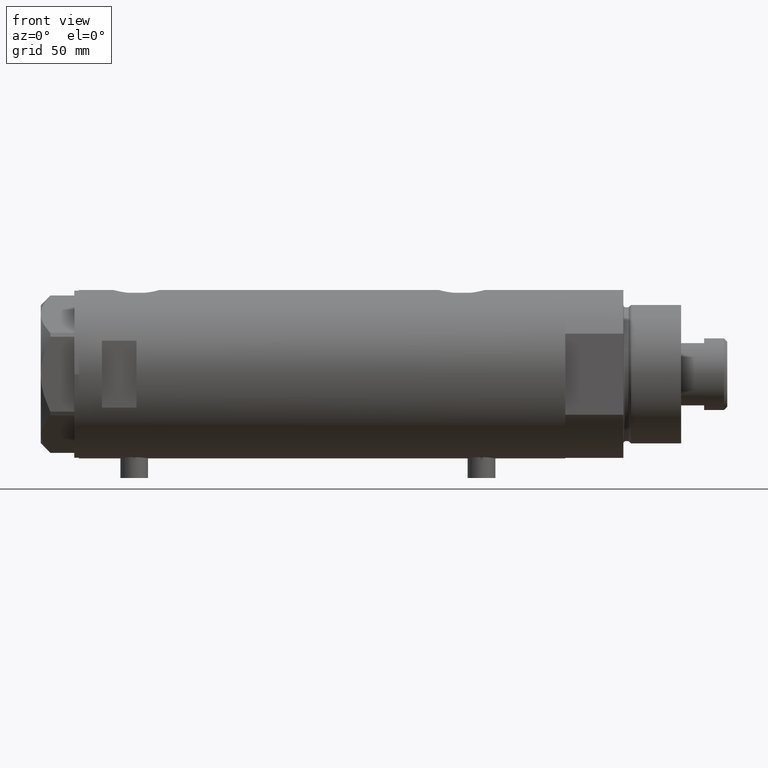
[diagram: clean part render]
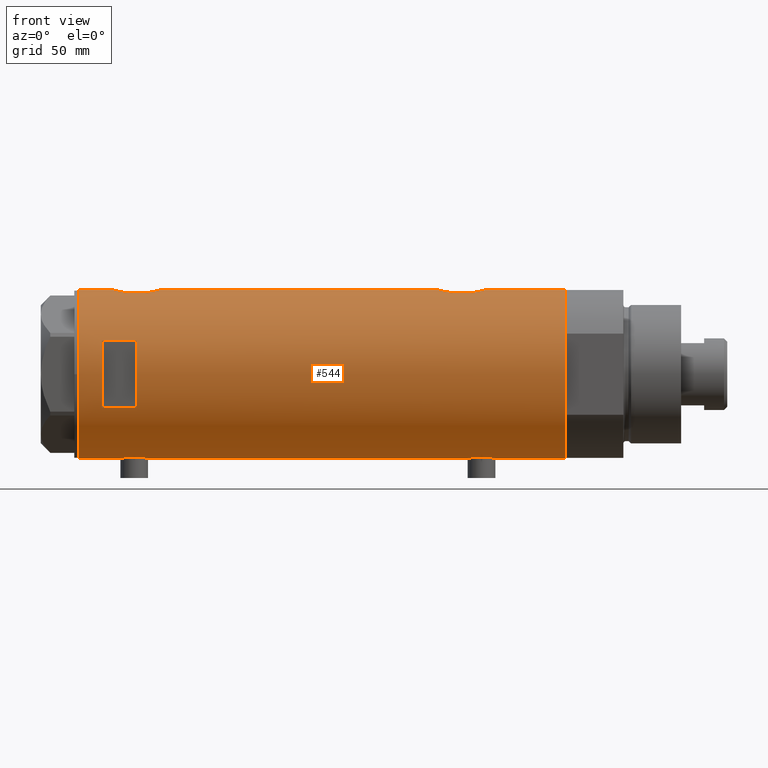
[diagram: same view with one face highlighted and labeled with its STEP entity id]
A machine part, front view. The second image highlights one B-rep face of the part: STEP entity #544.
In plain terms, the highlighted cylindrical surface (partial cylindrical patch) has radius 36.5 mm, axis along (-1, -0, 0).
Its self-contained STEP definition (entity closure, byte-faithful):
#43 = CARTESIAN_POINT ( 'NONE',  ( 36.00092304812866928, -6.029438422680417631, -52.60691844426350627 ) ) ;
#65 = CARTESIAN_POINT ( 'NONE',  ( -36.26616882068469749, -4.135065845178862887, 86.10415055940092088 ) ) ;
#66 = CARTESIAN_POINT ( 'NONE',  ( 35.93373217836897737, -6.415110096330618461, -52.91295733644908239 ) ) ;
#81 = CARTESIAN_POINT ( 'NONE',  ( -36.50000000000000000, 4.469960493350315609E-15, 75.14999999999999147 ) ) ;
#116 = VECTOR ( 'NONE', #325, 1000.000000000000000 ) ;
#119 = AXIS2_PLACEMENT_3D ( 'NONE', #3598, #4025, #2638 ) ;
#130 = VECTOR ( 'NONE', #3668, 1000.000000000000000 ) ;
#150 = CARTESIAN_POINT ( 'NONE',  ( 35.52320828895290816, -8.411622242316138198, -66.09772865944611908 ) ) ;
#155 = VERTEX_POINT ( 'NONE', #1631 ) ;
#168 = CARTESIAN_POINT ( 'NONE',  ( 36.41856252531824367, -2.482507212621164694, 70.70043487153495221 ) ) ;
#169 = EDGE_CURVE ( 'NONE', #1556, #206, #2192, .T. ) ;
#190 = CARTESIAN_POINT ( 'NONE',  ( 36.18850502651836365, -4.779575967213802734, 71.60220847109845010 ) ) ;
#206 = VERTEX_POINT ( 'NONE', #2347 ) ;
#210 = CARTESIAN_POINT ( 'NONE',  ( 0.000000000000000000, 0.000000000000000000, 95.40000000000001990 ) ) ;
#222 = CARTESIAN_POINT ( 'NONE',  ( 36.00068527486601511, -6.030855700422084631, 72.40798672872645625 ) ) ;
#246 = CARTESIAN_POINT ( 'NONE',  ( 36.34184199234172041, -3.427106516421252635, -70.00740913680033373 ) ) ;
#249 = ORIENTED_EDGE ( 'NONE', *, *, #3386, .T. ) ;
#256 = DIRECTION ( 'NONE',  ( 1.000000000000000000, 0.000000000000000000, 0.000000000000000000 ) ) ;
#271 = VECTOR ( 'NONE', #2052, 1000.000000000000000 ) ;
#273 = CIRCLE ( 'NONE', #119, 36.50000000000000000 ) ;
#274 = CIRCLE ( 'NONE', #1847, 36.50000000000000000 ) ;
#280 = CARTESIAN_POINT ( 'NONE',  ( -36.09582946723050867, -5.421573071064194060, -72.23608278370490154 ) ) ;
#290 = CARTESIAN_POINT ( 'NONE',  ( -36.50000000000000000, 4.469960816887837641E-15, -105.4000000000000057 ) ) ;
#294 = LINE ( 'NONE', #1992, #271 ) ;
#299 = CARTESIAN_POINT ( 'NONE',  ( 36.50000000000002132, -0.4962708696651109141, 90.40000000000001990 ) ) ;
#325 = DIRECTION ( 'NONE',  ( 0.000000000000000000, 0.000000000000000000, 1.000000000000000000 ) ) ;
#327 = CARTESIAN_POINT ( 'NONE',  ( -35.99695583620882644, -6.039273428153906664, -70.72224444987757863 ) ) ;
#346 = VECTOR ( 'NONE', #4441, 1000.000000000000000 ) ;
#357 = VECTOR ( 'NONE', #1199, 1000.000000000000000 ) ;
#368 = ORIENTED_EDGE ( 'NONE', *, *, #1246, .T. ) ;
#387 = CARTESIAN_POINT ( 'NONE',  ( -36.36656776002988067, -3.137002187003158582, 86.82136409273630306 ) ) ;
#388 = CARTESIAN_POINT ( 'NONE',  ( 36.12724769814494863, -5.207618053557752091, -52.05935879511539355 ) ) ;
#402 = CARTESIAN_POINT ( 'NONE',  ( -35.96816095843706051, -6.208699946936200753, 80.57503622872214066 ) ) ;
#410 = CIRCLE ( 'NONE', #3006, 36.50000000000000000 ) ;
#431 = CARTESIAN_POINT ( 'NONE',  ( -35.99659093586380010, -6.041447834568794306, 83.01422412014827046 ) ) ;
#432 = EDGE_CURVE ( 'NONE', #3948, #4410, #294, .T. ) ;
#454 = EDGE_CURVE ( 'NONE', #654, #155, #410, .T. ) ;
#491 = CARTESIAN_POINT ( 'NONE',  ( 35.39807338191550912, -8.909271871950334543, -55.94919617267213852 ) ) ;
#506 = CARTESIAN_POINT ( 'NONE',  ( 35.72742963626382107, -7.471989379615396665, 73.74937739587224428 ) ) ;
#514 = CARTESIAN_POINT ( 'NONE',  ( 36.29527920868845570, -3.886508670267136978, 71.17283724169138281 ) ) ;
#544 = ADVANCED_FACE ( 'NONE', ( #2118, #2519 ), #3868, .T. ) ;
#568 = CARTESIAN_POINT ( 'NONE',  ( 36.12792682573227410, -5.214735277442327899, 71.85306882011298057 ) ) ;
#597 = CARTESIAN_POINT ( 'NONE',  ( -36.50000000000000000, 4.469960816887837641E-15, -105.4000000000000057 ) ) ;
#605 = CARTESIAN_POINT ( 'NONE',  ( -35.98855750525640929, -6.088954600884531665, -70.52430226150165993 ) ) ;
#610 = DIRECTION ( 'NONE',  ( -0.000000000000000000, 0.000000000000000000, -1.000000000000000000 ) ) ;
#618 = CARTESIAN_POINT ( 'NONE',  ( 36.12724769814494152, -5.207618053557752980, 88.94064120488462777 ) ) ;
#625 = CARTESIAN_POINT ( 'NONE',  ( -36.50000000000000000, -0.4136690418839316097, -62.85000000000000142 ) ) ;
#642 = CARTESIAN_POINT ( 'NONE',  ( 35.72583162417569724, -7.484316398521979607, 87.05042643719500006 ) ) ;
#653 = CARTESIAN_POINT ( 'NONE',  ( -36.30107494031872761, -3.820993528321232624, -64.13693846463692694 ) ) ;
#654 = VERTEX_POINT ( 'NONE', #3315 ) ;
#671 = CARTESIAN_POINT ( 'NONE',  ( 35.29999999999999716, -9.282241108697837362, 84.12021504754763157 ) ) ;
#678 = CARTESIAN_POINT ( 'NONE',  ( -36.40915499150419521, -2.580495338846545472, -74.79605013355477183 ) ) ;
#697 = CARTESIAN_POINT ( 'NONE',  ( -36.47262891311152799, -1.427622242603856506, -63.01175370788300256 ) ) ;
#704 = ORIENTED_EDGE ( 'NONE', *, *, #2698, .F. ) ;
#714 = CARTESIAN_POINT ( 'NONE',  ( -36.30176144752230982, -3.814344296723637839, 76.43198298049743755 ) ) ;
#727 = VECTOR ( 'NONE', #4303, 1000.000000000000000 ) ;
#738 = CARTESIAN_POINT ( 'NONE',  ( -36.19599073318030236, -4.702920041824403263, 85.52153831676578477 ) ) ;
#739 = CARTESIAN_POINT ( 'NONE',  ( 36.34247810649306132, -3.420510937483960845, -51.19013481598272364 ) ) ;
#750 = DIRECTION ( 'NONE',  ( 1.000000000000000000, 0.000000000000000000, 0.000000000000000000 ) ) ;
#759 = CARTESIAN_POINT ( 'NONE',  ( 36.09633718678916381, -5.417295330713082002, -52.19085132654786463 ) ) ;
#777 = CARTESIAN_POINT ( 'NONE',  ( -35.98821803976956346, -6.090959022952118218, 82.81573883149420112 ) ) ;
#799 = VERTEX_POINT ( 'NONE', #2388 ) ;
#803 = CARTESIAN_POINT ( 'NONE',  ( -35.98855750525640929, -6.088954600884529000, 79.97569773849832586 ) ) ;
#804 = CARTESIAN_POINT ( 'NONE',  ( 35.29999999999999716, -9.282241108697837362, -56.87978495245236843 ) ) ;
#820 = CARTESIAN_POINT ( 'NONE',  ( 35.29999999999999716, -9.282241108697837362, -56.87978495245236843 ) ) ;
#841 = CARTESIAN_POINT ( 'NONE',  ( 35.72583162417570435, -7.484316398521970726, -53.94957356280497862 ) ) ;
#890 = ORIENTED_EDGE ( 'NONE', *, *, #3663, .F. ) ;
#903 = EDGE_CURVE ( 'NONE', #2990, #799, #4422, .T. ) ;
#913 = CARTESIAN_POINT ( 'NONE',  ( 35.93363298843767240, -6.415574104180961079, -68.28651472888893181 ) ) ;
#937 = CARTESIAN_POINT ( 'NONE',  ( 35.79656810172927806, -7.133411935499470502, -67.61254878557679149 ) ) ;
#939 = EDGE_CURVE ( 'NONE', #1558, #1584, #274, .T. ) ;
#944 = VECTOR ( 'NONE', #1759, 1000.000000000000000 ) ;
#948 = CARTESIAN_POINT ( 'NONE',  ( -35.96095902952617251, -6.249754054240902690, -69.51658765420471298 ) ) ;
#952 = EDGE_LOOP ( 'NONE', ( #1107, #2475, #368, #2986, #2589, #3104, #249, #890, #2245, #4174, #4051, #2224, #704, #3400, #1967, #1251 ) ) ;
#968 = CARTESIAN_POINT ( 'NONE',  ( -36.16125812922422966, -4.962923794285019952, -65.29553914089238731 ) ) ;
#985 = CARTESIAN_POINT ( 'NONE',  ( -36.19666146462961365, -4.704890678739095833, -73.23429859510785889 ) ) ;
#1011 = CARTESIAN_POINT ( 'NONE',  ( -36.16096637594731078, -4.968588355849257177, -72.91334492817756541 ) ) ;
#1033 = CARTESIAN_POINT ( 'NONE',  ( 36.34247810649306842, -3.420510937483958624, 89.80986518401728347 ) ) ;
#1040 = CARTESIAN_POINT ( 'NONE',  ( -36.44454782745417276, -2.020757099930496903, -63.18214135579003710 ) ) ;
#1071 = VERTEX_POINT ( 'NONE', #3805 ) ;
#1093 = CARTESIAN_POINT ( 'NONE',  ( 35.29999999999999716, -9.282241108697832033, 76.67978495245235138 ) ) ;
#1102 = CARTESIAN_POINT ( 'NONE',  ( -36.50000000000000000, -0.4136690418839331640, 87.65000000000000568 ) ) ;
#1107 = ORIENTED_EDGE ( 'NONE', *, *, #4358, .F. ) ;
#1117 = DIRECTION ( 'NONE',  ( 0.000000000000000000, 0.000000000000000000, 1.000000000000000000 ) ) ;
#1136 = CARTESIAN_POINT ( 'NONE',  ( -36.50000000000000000, -0.4082012689449558418, 75.15000000000001990 ) ) ;
#1199 = DIRECTION ( 'NONE',  ( 0.000000000000000000, 0.000000000000000000, 1.000000000000000000 ) ) ;
#1202 = CARTESIAN_POINT ( 'NONE',  ( 35.39794035667547689, -8.909777761736840773, 75.75045840910546247 ) ) ;
#1246 = EDGE_CURVE ( 'NONE', #1584, #3695, #2345, .T. ) ;
#1251 = ORIENTED_EDGE ( 'NONE', *, *, #169, .F. ) ;
#1252 = EDGE_CURVE ( 'NONE', #4434, #4241, #4436, .T. ) ;
#1263 = CARTESIAN_POINT ( 'NONE',  ( 36.50000000000000000, 0.000000000000000000, -70.59999999999999432 ) ) ;
#1275 = EDGE_CURVE ( 'NONE', #3215, #3776, #3970, .T. ) ;
#1282 = CARTESIAN_POINT ( 'NONE',  ( 36.48960339336945680, -1.002724032967599488, 70.43775134026503792 ) ) ;
#1284 = CARTESIAN_POINT ( 'NONE',  ( 35.29999999999999716, -9.282241108697832033, -64.32021504754764862 ) ) ;
#1290 = CARTESIAN_POINT ( 'NONE',  ( -36.36656776002988067, -3.137002187003159914, -63.67863590726370404 ) ) ;
#1314 = CARTESIAN_POINT ( 'NONE',  ( -36.06543684817881257, -5.617774235967366359, -66.33045552028299596 ) ) ;
#1316 = VERTEX_POINT ( 'NONE', #3927 ) ;
#1333 = CARTESIAN_POINT ( 'NONE',  ( -14.49137674618942562, -33.50000000000000000, -105.4000000000000057 ) ) ;
#1342 = CARTESIAN_POINT ( 'NONE',  ( 36.18674680775578167, -4.776679548204628034, 89.18892316931248843 ) ) ;
#1351 = CARTESIAN_POINT ( 'NONE',  ( -36.50000000000000000, -0.4082012689449570075, -75.35000000000000853 ) ) ;
#1354 = ORIENTED_EDGE ( 'NONE', *, *, #2724, .F. ) ;
#1369 = LINE ( 'NONE', #3428, #1515 ) ;
#1388 = B_SPLINE_CURVE_WITH_KNOTS ( 'NONE', 3,
 ( #2460, #2744, #4158, #2439, #3843, #739, #2091, #3494, #3476, #388, #759, #43, #66, #1892, #841, #2530, #491, #820 ),
 .UNSPECIFIED., .F., .F.,
 ( 4, 2, 2, 2, 2, 2, 2, 2, 4 ),
 ( 0.01190956515753145185, 0.01339852714138290921, 0.01488748912523436482, 0.01637645110908582391, 0.01712093210101154825, 0.01786541309293727259, 0.01935437507678870739, 0.02084333706064014219, 0.02382126102834301873 ),
 .UNSPECIFIED. ) ;
#1398 = B_SPLINE_CURVE_WITH_KNOTS ( 'NONE', 3,
 ( #1910, #1585, #150, #2270, #2197, #937, #2957, #913, #3343, #1937, #2304, #1868, #246, #1624, #3662, #3324, #3249, #1540 ),
 .UNSPECIFIED., .F., .F.,
 ( 4, 2, 2, 2, 2, 2, 2, 2, 4 ),
 ( -0.01189883390545605317, -0.008924125429092051587, -0.008180448310001049023, -0.007436771190910045591, -0.005949416952728037861, -0.004462062714546030130, -0.002974708476364020665, -0.001487354238182012067, -1.734723475976807094E-18 ),
 .UNSPECIFIED. ) ;
#1410 = EDGE_CURVE ( 'NONE', #4002, #4410, #2175, .T. ) ;
#1418 = CARTESIAN_POINT ( 'NONE',  ( -35.96794010939611752, -6.209972807992079957, 82.21555548991356943 ) ) ;
#1436 = CARTESIAN_POINT ( 'NONE',  ( -36.44454782745417987, -2.020757099930490686, 87.31785864421000554 ) ) ;
#1455 = EDGE_LOOP ( 'NONE', ( #2083, #4458, #1354, #1959 ) ) ;
#1456 = CARTESIAN_POINT ( 'NONE',  ( -36.46417279006303858, -1.628689148039105028, 87.43753938693819805 ) ) ;
#1474 = CARTESIAN_POINT ( 'NONE',  ( -36.26692673949091983, -4.128477002029504739, 76.69000012567835256 ) ) ;
#1515 = VECTOR ( 'NONE', #2694, 1000.000000000000000 ) ;
#1540 = CARTESIAN_POINT ( 'NONE',  ( 36.50000000000000000, 0.000000000000000000, -70.59999999999999432 ) ) ;
#1553 = CARTESIAN_POINT ( 'NONE',  ( 35.83108131285855791, -6.958268797611344425, 73.21369216627172705 ) ) ;
#1556 = VERTEX_POINT ( 'NONE', #2667 ) ;
#1558 = VERTEX_POINT ( 'NONE', #290 ) ;
#1575 = DIRECTION ( 'NONE',  ( 1.000000000000000000, 0.000000000000000000, 0.000000000000000000 ) ) ;
#1584 = VERTEX_POINT ( 'NONE', #4056 ) ;
#1585 = CARTESIAN_POINT ( 'NONE',  ( 35.39794035667549821, -8.909777761736844326, -65.24954159089455175 ) ) ;
#1615 = CARTESIAN_POINT ( 'NONE',  ( -36.01675918113429020, -5.920026275461276910, -71.11439556517890992 ) ) ;
#1624 = CARTESIAN_POINT ( 'NONE',  ( 36.41856252531823657, -2.482507212621166026, -70.29956512846504779 ) ) ;
#1631 = CARTESIAN_POINT ( 'NONE',  ( 36.50000000000000000, 0.000000000000000000, 105.4000000000000057 ) ) ;
#1670 = LINE ( 'NONE', #597, #130 ) ;
#1673 = CARTESIAN_POINT ( 'NONE',  ( 36.50000000000000000, 0.000000000000000000, -105.4000000000000057 ) ) ;
#1675 = LINE ( 'NONE', #3517, #944 ) ;
#1677 = CARTESIAN_POINT ( 'NONE',  ( -36.26616882068470460, -4.135065845178866439, -64.39584944059907912 ) ) ;
#1696 = CARTESIAN_POINT ( 'NONE',  ( -35.96794010939611752, -6.209972807992079069, -68.28444451008647320 ) ) ;
#1742 = CARTESIAN_POINT ( 'NONE',  ( -36.39558535855675103, -2.764807686268001330, 75.79105881454391636 ) ) ;
#1747 = B_SPLINE_CURVE_WITH_KNOTS ( 'NONE', 3,
 ( #2905, #1202, #2597, #3607, #506, #2925, #1553, #3968, #222, #568, #190, #514, #4340, #168, #3273, #1282, #3994, #2573 ),
 .UNSPECIFIED., .F., .F.,
 ( 4, 2, 2, 2, 2, 2, 2, 2, 4 ),
 ( -0.01189883390545605317, -0.008924125429092049852, -0.008180448310001047288, -0.007436771190910044724, -0.005949416952728036993, -0.004462062714546029263, -0.002974708476364020665, -0.001487354238182010333, -1.734723475976807094E-18 ),
 .UNSPECIFIED. ) ;
#1758 = CARTESIAN_POINT ( 'NONE',  ( -36.39621039793029666, -2.776267550998800182, 87.01430753106777161 ) ) ;
#1759 = DIRECTION ( 'NONE',  ( 0.000000000000000000, 0.000000000000000000, 1.000000000000000000 ) ) ;
#1779 = CARTESIAN_POINT ( 'NONE',  ( -36.01639592019626690, -5.922235714778416593, 83.40796802426915235 ) ) ;
#1802 = CARTESIAN_POINT ( 'NONE',  ( -36.06543684817881257, -5.617774235967358365, 84.16954447971703246 ) ) ;
#1847 = AXIS2_PLACEMENT_3D ( 'NONE', #3009, #2349, #256 ) ;
#1868 = CARTESIAN_POINT ( 'NONE',  ( 36.29527920868844149, -3.886508670267136090, -69.82716275830863140 ) ) ;
#1892 = CARTESIAN_POINT ( 'NONE',  ( 35.79638309643554805, -7.141827709208433461, -53.58298073030452713 ) ) ;
#1910 = CARTESIAN_POINT ( 'NONE',  ( 35.29999999999999716, -9.282241108697832033, -64.32021504754764862 ) ) ;
#1912 = CARTESIAN_POINT ( 'NONE',  ( -36.50000000000000000, 1.407447864834978200E-15, 87.65000000000000568 ) ) ;
#1937 = CARTESIAN_POINT ( 'NONE',  ( 36.12792682573229541, -5.214735277442327011, -69.14693117988701943 ) ) ;
#1959 = ORIENTED_EDGE ( 'NONE', *, *, #3849, .F. ) ;
#1966 = CARTESIAN_POINT ( 'NONE',  ( -36.50000000000000000, 4.469960493350315609E-15, -75.35000000000000853 ) ) ;
#1967 = ORIENTED_EDGE ( 'NONE', *, *, #2752, .F. ) ;
#1992 = CARTESIAN_POINT ( 'NONE',  ( 35.29999999999999716, -9.282241108697835585, -105.4000000000000057 ) ) ;
#2000 = CARTESIAN_POINT ( 'NONE',  ( 36.44931971524466263, -1.985988150549296671, 90.21366860531762200 ) ) ;
#2026 = CARTESIAN_POINT ( 'NONE',  ( 35.29999999999999716, -9.282241108697835585, -105.4000000000000057 ) ) ;
#2028 = CARTESIAN_POINT ( 'NONE',  ( -36.36635911126387555, -3.125815113635437292, -74.51605600407904717 ) ) ;
#2052 = DIRECTION ( 'NONE',  ( 0.000000000000000000, 0.000000000000000000, 1.000000000000000000 ) ) ;
#2065 = CARTESIAN_POINT ( 'NONE',  ( -36.09582946723050156, -5.421573071064194949, 78.26391721629516951 ) ) ;
#2083 = ORIENTED_EDGE ( 'NONE', *, *, #2849, .F. ) ;
#2090 = CARTESIAN_POINT ( 'NONE',  ( -36.21356728133256553, -4.566014386638763689, 85.67262660764747295 ) ) ;
#2091 = CARTESIAN_POINT ( 'NONE',  ( 36.29582892817134621, -3.881628320031160317, -51.37065565465011474 ) ) ;
#2118 = FACE_OUTER_BOUND ( 'NONE', #952, .T. ) ;
#2130 = CARTESIAN_POINT ( 'NONE',  ( -36.16125812922425098, -4.962923794285023504, 85.20446085910759848 ) ) ;
#2137 = VERTEX_POINT ( 'NONE', #2896 ) ;
#2156 = CARTESIAN_POINT ( 'NONE',  ( -35.96095902952617251, -6.249754054240901802, 80.98341234579530123 ) ) ;
#2169 = CARTESIAN_POINT ( 'NONE',  ( 36.50000000000000000, 0.000000000000000000, -105.4000000000000057 ) ) ;
#2175 = B_SPLINE_CURVE_WITH_KNOTS ( 'NONE', 3,
 ( #4384, #299, #4115, #2000, #3411, #1033, #4040, #3713, #1342, #618, #3023, #2397, #4413, #3727, #642, #3760, #2983, #671 ),
 .UNSPECIFIED., .F., .F.,
 ( 4, 2, 2, 2, 2, 2, 2, 2, 4 ),
 ( 0.01190956515753145012, 0.01339852714138288839, 0.01488748912523432666, 0.01637645110908576493, 0.01712093210101148233, 0.01786541309293720320, 0.01935437507678866575, 0.02084333706064012831, 0.02382126102834302220 ),
 .UNSPECIFIED. ) ;
#2192 = B_SPLINE_CURVE_WITH_KNOTS ( 'NONE', 3,
 ( #1966, #1351, #3767, #3738, #3352, #678, #4464, #2028, #2718, #3419, #4092, #985, #1011, #280, #2380, #3334, #1615, #327, #605, #2989, #948, #2314, #1696, #3071, #3700, #2746, #4395, #1314, #4050, #4122, #968, #4371, #2332, #1677, #653, #1290, #2656, #3787, #1040, #2404, #697, #4023, #625, #3052 ),
 .UNSPECIFIED., .F., .F.,
 ( 4, 2, 2, 2, 2, 2, 2, 2, 2, 2, 2, 2, 2, 2, 2, 2, 2, 2, 2, 2, 2, 4 ),
 ( 0.01957644481942642095, 0.02079966591703045695, 0.02202288701463449294, 0.02263449756343650573, 0.02324610811223851506, 0.02446932920984253371, 0.02569255030744655582, 0.02691577140505057447, 0.02752738195385256298, 0.02813899250265455843, 0.02936221360025857707, 0.03058543469786260266, 0.03119704524666461198, 0.03180865579546662825, 0.03303187689307068159, 0.03364348744187269785, 0.03425509799067470718, 0.03547831908827873970, 0.03670154018588277223, 0.03731315073468478849, 0.03792476128348680475, 0.03914798238109083034 ),
 .UNSPECIFIED. ) ;
#2197 = CARTESIAN_POINT ( 'NONE',  ( 35.72742963626382107, -7.471989379615396665, -67.25062260412778414 ) ) ;
#2224 = ORIENTED_EDGE ( 'NONE', *, *, #454, .F. ) ;
#2245 = ORIENTED_EDGE ( 'NONE', *, *, #432, .T. ) ;
#2270 = CARTESIAN_POINT ( 'NONE',  ( 35.69273631926343171, -7.635692914629146344, -67.06200195651491924 ) ) ;
#2290 = CARTESIAN_POINT ( 'NONE',  ( -36.50000000000000000, 4.469960816887837641E-15, -105.4000000000000057 ) ) ;
#2304 = CARTESIAN_POINT ( 'NONE',  ( 36.18850502651835654, -4.779575967213801846, -69.39779152890153568 ) ) ;
#2314 = CARTESIAN_POINT ( 'NONE',  ( -35.96087392089863499, -6.250243747806517369, -68.69082509223819955 ) ) ;
#2332 = CARTESIAN_POINT ( 'NONE',  ( -36.21356728133256553, -4.566014386638764577, -64.82737339235256968 ) ) ;
#2342 = CARTESIAN_POINT ( 'NONE',  ( 35.29999999999999716, -9.282241108697837362, 84.12021504754763157 ) ) ;
#2345 = LINE ( 'NONE', #1673, #3870 ) ;
#2347 = CARTESIAN_POINT ( 'NONE',  ( -36.50000000000000000, -5.849986204104554638E-16, -62.85000000000000142 ) ) ;
#2349 = DIRECTION ( 'NONE',  ( 0.000000000000000000, 0.000000000000000000, 1.000000000000000000 ) ) ;
#2380 = CARTESIAN_POINT ( 'NONE',  ( -36.06605150775667568, -5.613853192123348101, -71.87765688272543230 ) ) ;
#2388 = CARTESIAN_POINT ( 'NONE',  ( -14.49137674618942739, -33.50000000000000000, 80.40000000000003411 ) ) ;
#2397 = CARTESIAN_POINT ( 'NONE',  ( 36.00092304812866928, -6.029438422680415854, 88.39308155573650083 ) ) ;
#2404 = CARTESIAN_POINT ( 'NONE',  ( -36.46417279006303858, -1.628689148039111245, -63.06246061306185169 ) ) ;
#2419 = CARTESIAN_POINT ( 'NONE',  ( -36.49315367594273596, -0.8144497809045445624, 75.18960214445246493 ) ) ;
#2438 = CARTESIAN_POINT ( 'NONE',  ( -36.35061318816141807, -3.303361544904982239, 76.09035958056981030 ) ) ;
#2439 = CARTESIAN_POINT ( 'NONE',  ( 36.44931971524464842, -1.985988150549292897, -50.78633139468235669 ) ) ;
#2459 = CARTESIAN_POINT ( 'NONE',  ( -35.96087392089863499, -6.250243747806518257, 81.80917490776184309 ) ) ;
#2460 = CARTESIAN_POINT ( 'NONE',  ( 36.50000000000000000, 4.344609657431182014E-19, -50.60000000000000853 ) ) ;
#2475 = ORIENTED_EDGE ( 'NONE', *, *, #939, .T. ) ;
#2519 = FACE_BOUND ( 'NONE', #1455, .T. ) ;
#2530 = CARTESIAN_POINT ( 'NONE',  ( 35.52323553852026095, -8.411295122831242921, -55.10247607048913210 ) ) ;
#2555 = CARTESIAN_POINT ( 'NONE',  ( -36.50000000000000000, 4.469960493350315609E-15, 75.14999999999999147 ) ) ;
#2573 = CARTESIAN_POINT ( 'NONE',  ( 36.50000000000000000, 0.000000000000000000, 70.40000000000000568 ) ) ;
#2580 = AXIS2_PLACEMENT_3D ( 'NONE', #4194, #3897, #750 ) ;
#2589 = ORIENTED_EDGE ( 'NONE', *, *, #1252, .T. ) ;
#2597 = CARTESIAN_POINT ( 'NONE',  ( 35.52320828895290816, -8.411622242316136422, 74.90227134055386671 ) ) ;
#2638 = DIRECTION ( 'NONE',  ( 1.776356839400250465E-15, 1.000000000000000000, 4.562560375171875891E-15 ) ) ;
#2656 = CARTESIAN_POINT ( 'NONE',  ( -36.39621039793028956, -2.776267550998802847, -63.48569246893222129 ) ) ;
#2667 = CARTESIAN_POINT ( 'NONE',  ( -36.50000000000000000, 4.469960493350315609E-15, -75.35000000000000853 ) ) ;
#2694 = DIRECTION ( 'NONE',  ( 0.000000000000000000, 0.000000000000000000, 1.000000000000000000 ) ) ;
#2698 = EDGE_CURVE ( 'NONE', #3776, #654, #4004, .T. ) ;
#2711 = CARTESIAN_POINT ( 'NONE',  ( 0.000000000000000000, 0.000000000000000000, 105.4000000000000057 ) ) ;
#2718 = CARTESIAN_POINT ( 'NONE',  ( -36.35061318816140385, -3.303361544904981795, -74.40964041943017548 ) ) ;
#2724 = EDGE_CURVE ( 'NONE', #1316, #2990, #2949, .T. ) ;
#2744 = CARTESIAN_POINT ( 'NONE',  ( 36.50000000000000000, -0.4962708696651109141, -50.60000000000000853 ) ) ;
#2746 = CARTESIAN_POINT ( 'NONE',  ( -36.01639592019627401, -5.922235714778421034, -67.09203197573087607 ) ) ;
#2752 = EDGE_CURVE ( 'NONE', #206, #3215, #3262, .T. ) ;
#2765 = CARTESIAN_POINT ( 'NONE',  ( -36.16096637594733210, -4.968588355849259841, 77.58665507182242038 ) ) ;
#2774 = CARTESIAN_POINT ( 'NONE',  ( 36.50000000000000000, 4.344614706140975428E-19, 90.39999999999999147 ) ) ;
#2804 = CARTESIAN_POINT ( 'NONE',  ( -36.47262891311152089, -1.427622242603850955, 87.48824629211701165 ) ) ;
#2841 = CARTESIAN_POINT ( 'NONE',  ( -36.19666146462961365, -4.704890678739094945, 77.26570140489216953 ) ) ;
#2849 = EDGE_CURVE ( 'NONE', #799, #2137, #273, .T. ) ;
#2896 = CARTESIAN_POINT ( 'NONE',  ( 14.49137674618942739, -33.50000000000000000, 80.40000000000003411 ) ) ;
#2905 = CARTESIAN_POINT ( 'NONE',  ( 35.29999999999999716, -9.282241108697832033, 76.67978495245235138 ) ) ;
#2925 = CARTESIAN_POINT ( 'NONE',  ( 35.79656810172927806, -7.133411935499470502, 73.38745121442323693 ) ) ;
#2949 = CIRCLE ( 'NONE', #4016, 36.50000000000000000 ) ;
#2957 = CARTESIAN_POINT ( 'NONE',  ( 35.83108131285855791, -6.958268797611344425, -67.78630783372827295 ) ) ;
#2983 = CARTESIAN_POINT ( 'NONE',  ( 35.39807338191550912, -8.909271871950332766, 85.05080382732786859 ) ) ;
#2986 = ORIENTED_EDGE ( 'NONE', *, *, #3757, .F. ) ;
#2989 = CARTESIAN_POINT ( 'NONE',  ( -35.96816095843705341, -6.208699946936202529, -69.92496377127788776 ) ) ;
#2990 = VERTEX_POINT ( 'NONE', #3617 ) ;
#3006 = AXIS2_PLACEMENT_3D ( 'NONE', #2711, #3041, #3754 ) ;
#3009 = CARTESIAN_POINT ( 'NONE',  ( 0.000000000000000000, 0.000000000000000000, -105.4000000000000057 ) ) ;
#3023 = CARTESIAN_POINT ( 'NONE',  ( 36.09633718678917802, -5.417295330713079338, 88.80914867345211405 ) ) ;
#3041 = DIRECTION ( 'NONE',  ( 0.000000000000000000, 0.000000000000000000, 1.000000000000000000 ) ) ;
#3050 = DIRECTION ( 'NONE',  ( 0.000000000000000000, 0.000000000000000000, 1.000000000000000000 ) ) ;
#3052 = CARTESIAN_POINT ( 'NONE',  ( -36.50000000000000000, -5.849986204104554638E-16, -62.85000000000000142 ) ) ;
#3071 = CARTESIAN_POINT ( 'NONE',  ( -35.98821803976956346, -6.090959022952116442, -67.68426116850582730 ) ) ;
#3104 = ORIENTED_EDGE ( 'NONE', *, *, #4231, .F. ) ;
#3120 = CARTESIAN_POINT ( 'NONE',  ( -36.40915499150420231, -2.580495338846545472, 75.70394986644525659 ) ) ;
#3132 = CARTESIAN_POINT ( 'NONE',  ( -36.43335814606992074, -2.212659578761320134, 87.24876399169507124 ) ) ;
#3177 = CARTESIAN_POINT ( 'NONE',  ( -36.46614432713122511, -1.622933015999963535, 75.35033402613152020 ) ) ;
#3215 = VERTEX_POINT ( 'NONE', #2555 ) ;
#3249 = CARTESIAN_POINT ( 'NONE',  ( 36.50000000000000000, -0.5031001875915691590, -70.59999999999999432 ) ) ;
#3262 = LINE ( 'NONE', #3965, #727 ) ;
#3273 = CARTESIAN_POINT ( 'NONE',  ( 36.44881677724178815, -1.995085670027225255, 70.58819654630536888 ) ) ;
#3315 = CARTESIAN_POINT ( 'NONE',  ( -36.50000000000000000, 4.469960816887837641E-15, 105.4000000000000057 ) ) ;
#3324 = CARTESIAN_POINT ( 'NONE',  ( 36.48960339336945680, -1.002724032967600598, -70.56224865973496208 ) ) ;
#3334 = CARTESIAN_POINT ( 'NONE',  ( -36.02823773219769521, -5.849994928883553769, -71.30955101485646708 ) ) ;
#3343 = CARTESIAN_POINT ( 'NONE',  ( 36.00068527486600800, -6.030855700422084631, -68.59201327127354375 ) ) ;
#3352 = CARTESIAN_POINT ( 'NONE',  ( -36.44621655743050326, -2.016281777336077052, -75.02982976699117046 ) ) ;
#3386 = EDGE_CURVE ( 'NONE', #4203, #1071, #4197, .T. ) ;
#3400 = ORIENTED_EDGE ( 'NONE', *, *, #1275, .F. ) ;
#3411 = CARTESIAN_POINT ( 'NONE',  ( 36.41918031349424467, -2.473644131148923009, 90.10188345463190274 ) ) ;
#3419 = CARTESIAN_POINT ( 'NONE',  ( -36.30176144752230982, -3.814344296723638728, -74.06801701950256245 ) ) ;
#3428 = CARTESIAN_POINT ( 'NONE',  ( 14.49137674618942562, -33.50000000000000000, -105.4000000000000057 ) ) ;
#3459 = CARTESIAN_POINT ( 'NONE',  ( -35.99695583620881223, -6.039273428153904888, 79.77775555012243558 ) ) ;
#3475 = CARTESIAN_POINT ( 'NONE',  ( -36.30107494031871340, -3.820993528321230848, 86.36306153536308727 ) ) ;
#3476 = CARTESIAN_POINT ( 'NONE',  ( 36.18674680775578167, -4.776679548204626258, -51.81107683068754000 ) ) ;
#3494 = CARTESIAN_POINT ( 'NONE',  ( 36.21540437201188922, -4.554727782332259167, -51.69402370911375755 ) ) ;
#3516 = CARTESIAN_POINT ( 'NONE',  ( -36.36635911126388976, -3.125815113635436404, 75.98394399592095283 ) ) ;
#3517 = CARTESIAN_POINT ( 'NONE',  ( 36.50000000000000000, 0.000000000000000000, -105.4000000000000057 ) ) ;
#3542 = CARTESIAN_POINT ( 'NONE',  ( -36.09514898390870030, -5.426114745500156822, 84.52838652946140030 ) ) ;
#3598 = CARTESIAN_POINT ( 'NONE',  ( 0.000000000000000000, 0.000000000000000000, 80.40000000000017621 ) ) ;
#3607 = CARTESIAN_POINT ( 'NONE',  ( 35.69273631926343171, -7.635692914629146344, 73.93799804348510918 ) ) ;
#3617 = CARTESIAN_POINT ( 'NONE',  ( -14.49137674618942739, -33.50000000000000000, 95.40000000000001990 ) ) ;
#3662 = CARTESIAN_POINT ( 'NONE',  ( 36.44881677724179525, -1.995085670027224367, -70.41180345369464533 ) ) ;
#3663 = EDGE_CURVE ( 'NONE', #3948, #1071, #1747, .T. ) ;
#3668 = DIRECTION ( 'NONE',  ( 0.000000000000000000, 0.000000000000000000, 1.000000000000000000 ) ) ;
#3695 = VERTEX_POINT ( 'NONE', #1263 ) ;
#3700 = CARTESIAN_POINT ( 'NONE',  ( -35.99659093586380010, -6.041447834568798747, -67.48577587985177217 ) ) ;
#3713 = CARTESIAN_POINT ( 'NONE',  ( 36.21540437201187501, -4.554727782332259167, 89.30597629088620693 ) ) ;
#3727 = CARTESIAN_POINT ( 'NONE',  ( 35.79638309643554805, -7.141827709208433461, 87.41701926969550129 ) ) ;
#3738 = CARTESIAN_POINT ( 'NONE',  ( -36.46614432713123222, -1.622933015999965090, -75.14966597386846558 ) ) ;
#3754 = DIRECTION ( 'NONE',  ( 1.000000000000000000, 0.000000000000000000, 0.000000000000000000 ) ) ;
#3757 = EDGE_CURVE ( 'NONE', #4434, #3695, #1398, .T. ) ;
#3760 = CARTESIAN_POINT ( 'NONE',  ( 35.52323553852026805, -8.411295122831251803, 85.89752392951088211 ) ) ;
#3767 = CARTESIAN_POINT ( 'NONE',  ( -36.49315367594275017, -0.8144497809045466719, -75.31039785554756349 ) ) ;
#3776 = VERTEX_POINT ( 'NONE', #4288 ) ;
#3787 = CARTESIAN_POINT ( 'NONE',  ( -36.43335814606992784, -2.212659578761321022, -63.25123600830491455 ) ) ;
#3802 = CARTESIAN_POINT ( 'NONE',  ( -36.44621655743048905, -2.016281777336075276, 75.47017023300884375 ) ) ;
#3805 = CARTESIAN_POINT ( 'NONE',  ( 36.50000000000000000, 0.000000000000000000, 70.40000000000000568 ) ) ;
#3823 = CARTESIAN_POINT ( 'NONE',  ( -36.14410773716529235, -5.085921866747742826, 85.03835878420473193 ) ) ;
#3842 = CARTESIAN_POINT ( 'NONE',  ( -36.06605150775666857, -5.613853192123346325, 78.62234311727455349 ) ) ;
#3843 = CARTESIAN_POINT ( 'NONE',  ( 36.41918031349423757, -2.473644131148925673, -50.89811654536808305 ) ) ;
#3849 = EDGE_CURVE ( 'NONE', #2137, #1316, #1369, .T. ) ;
#3857 = CARTESIAN_POINT ( 'NONE',  ( -36.01675918113430441, -5.920026275461276910, 79.38560443482106166 ) ) ;
#3868 = CYLINDRICAL_SURFACE ( 'NONE', #2580, 36.50000000000000000 ) ;
#3870 = VECTOR ( 'NONE', #3050, 1000.000000000000000 ) ;
#3881 = CARTESIAN_POINT ( 'NONE',  ( -36.02823773219769521, -5.849994928883552880, 79.19044898514358977 ) ) ;
#3897 = DIRECTION ( 'NONE',  ( 0.000000000000000000, 0.000000000000000000, 1.000000000000000000 ) ) ;
#3927 = CARTESIAN_POINT ( 'NONE',  ( 14.49137674618942739, -33.50000000000000000, 95.40000000000001990 ) ) ;
#3948 = VERTEX_POINT ( 'NONE', #1093 ) ;
#3965 = CARTESIAN_POINT ( 'NONE',  ( -36.50000000000000000, 4.469960816887837641E-15, -105.4000000000000057 ) ) ;
#3968 = CARTESIAN_POINT ( 'NONE',  ( 35.93363298843768661, -6.415574104180961967, 72.71348527111108240 ) ) ;
#3970 = B_SPLINE_CURVE_WITH_KNOTS ( 'NONE', 3,
 ( #81, #1136, #2419, #3177, #3802, #3120, #1742, #3516, #2438, #714, #1474, #2841, #2765, #2065, #3842, #3881, #3857, #3459, #803, #402, #2156, #2459, #1418, #777, #431, #1779, #4157, #1802, #3542, #3823, #2130, #738, #2090, #65, #3475, #387, #1758, #3132, #1436, #1456, #2804, #4183, #1102, #1912 ),
 .UNSPECIFIED., .F., .F.,
 ( 4, 2, 2, 2, 2, 2, 2, 2, 2, 2, 2, 2, 2, 2, 2, 2, 2, 2, 2, 2, 2, 4 ),
 ( 0.01957644481942642095, 0.02079966591703042919, 0.02202288701463443396, 0.02263449756343643635, 0.02324610811223844220, 0.02446932920984244697, 0.02569255030744645174, 0.02691577140505045651, 0.02752738195385245890, 0.02813899250265446475, 0.02936221360025851115, 0.03058543469786256103, 0.03119704524666458423, 0.03180865579546660743, 0.03303187689307068853, 0.03364348744187271173, 0.03425509799067473493, 0.03547831908827876746, 0.03670154018588278610, 0.03731315073468480237, 0.03792476128348681169, 0.03914798238109083728 ),
 .UNSPECIFIED. ) ;
#3994 = CARTESIAN_POINT ( 'NONE',  ( 36.50000000000000000, -0.5031001875915696031, 70.40000000000000568 ) ) ;
#4002 = VERTEX_POINT ( 'NONE', #2774 ) ;
#4004 = LINE ( 'NONE', #2290, #357 ) ;
#4016 = AXIS2_PLACEMENT_3D ( 'NONE', #210, #610, #1575 ) ;
#4023 = CARTESIAN_POINT ( 'NONE',  ( -36.49297138689433950, -0.8222528563518539668, -62.89066887946567874 ) ) ;
#4025 = DIRECTION ( 'NONE',  ( -0.000000000000000000, -4.625929269271492422E-15, 1.000000000000000000 ) ) ;
#4040 = CARTESIAN_POINT ( 'NONE',  ( 36.29582892817134621, -3.881628320031161650, 89.62934434534990658 ) ) ;
#4050 = CARTESIAN_POINT ( 'NONE',  ( -36.09514898390869320, -5.426114745500165704, -65.97161347053858549 ) ) ;
#4051 = ORIENTED_EDGE ( 'NONE', *, *, #4206, .T. ) ;
#4056 = CARTESIAN_POINT ( 'NONE',  ( 36.50000000000000000, 0.000000000000000000, -105.4000000000000057 ) ) ;
#4062 = CARTESIAN_POINT ( 'NONE',  ( 36.50000000000000000, 4.344609657431182014E-19, -50.60000000000000853 ) ) ;
#4092 = CARTESIAN_POINT ( 'NONE',  ( -36.26692673949092693, -4.128477002029505627, -73.80999987432171849 ) ) ;
#4115 = CARTESIAN_POINT ( 'NONE',  ( 36.48988302519020266, -0.9927202255321175839, 90.36326989411300303 ) ) ;
#4122 = CARTESIAN_POINT ( 'NONE',  ( -36.14410773716529235, -5.085921866747752595, -65.46164121579531070 ) ) ;
#4157 = CARTESIAN_POINT ( 'NONE',  ( -36.02782481185206365, -5.852531070448502959, 83.60277008952189703 ) ) ;
#4158 = CARTESIAN_POINT ( 'NONE',  ( 36.48988302519020976, -0.9927202255321156965, -50.63673010588698986 ) ) ;
#4174 = ORIENTED_EDGE ( 'NONE', *, *, #1410, .F. ) ;
#4183 = CARTESIAN_POINT ( 'NONE',  ( -36.49297138689433240, -0.8222528563518511913, 87.60933112053437810 ) ) ;
#4194 = CARTESIAN_POINT ( 'NONE',  ( 0.000000000000000000, 0.000000000000000000, -105.4000000000000057 ) ) ;
#4197 = LINE ( 'NONE', #2169, #4321 ) ;
#4203 = VERTEX_POINT ( 'NONE', #4062 ) ;
#4206 = EDGE_CURVE ( 'NONE', #4002, #155, #1675, .T. ) ;
#4231 = EDGE_CURVE ( 'NONE', #4203, #4241, #1388, .T. ) ;
#4241 = VERTEX_POINT ( 'NONE', #804 ) ;
#4288 = CARTESIAN_POINT ( 'NONE',  ( -36.50000000000000000, 1.407447864834978200E-15, 87.65000000000000568 ) ) ;
#4303 = DIRECTION ( 'NONE',  ( 0.000000000000000000, 0.000000000000000000, 1.000000000000000000 ) ) ;
#4321 = VECTOR ( 'NONE', #1117, 1000.000000000000000 ) ;
#4340 = CARTESIAN_POINT ( 'NONE',  ( 36.34184199234172041, -3.427106516421252635, 70.99259086319966627 ) ) ;
#4358 = EDGE_CURVE ( 'NONE', #1558, #1556, #1670, .T. ) ;
#4371 = CARTESIAN_POINT ( 'NONE',  ( -36.19599073318029525, -4.702920041824404151, -64.97846168323422944 ) ) ;
#4384 = CARTESIAN_POINT ( 'NONE',  ( 36.50000000000000000, 4.344614706140975428E-19, 90.39999999999999147 ) ) ;
#4395 = CARTESIAN_POINT ( 'NONE',  ( -36.02782481185206365, -5.852531070448510953, -66.89722991047813139 ) ) ;
#4410 = VERTEX_POINT ( 'NONE', #2342 ) ;
#4413 = CARTESIAN_POINT ( 'NONE',  ( 35.93373217836898448, -6.415110096330618461, 88.08704266355093182 ) ) ;
#4422 = LINE ( 'NONE', #1333, #346 ) ;
#4434 = VERTEX_POINT ( 'NONE', #1284 ) ;
#4436 = LINE ( 'NONE', #2026, #116 ) ;
#4441 = DIRECTION ( 'NONE',  ( -0.000000000000000000, -0.000000000000000000, -1.000000000000000000 ) ) ;
#4458 = ORIENTED_EDGE ( 'NONE', *, *, #903, .F. ) ;
#4464 = CARTESIAN_POINT ( 'NONE',  ( -36.39558535855672972, -2.764807686268001774, -74.70894118545611207 ) ) ;